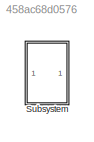
MODEL slx_458ac68d0576
KIND model
CONFIG AbsTol = auto
CONFIG EnableMultiTasking = off
CONFIG FixedStep = auto
CONFIG MaxStep = auto
CONFIG MinStep = auto
CONFIG RelTol = 1e-3
CONFIG SampleTimeConstraint = Unconstrained
CONFIG SolverName = VariableStepAuto
CONFIG StartTime = 0.0
CONFIG StopTime = 10.0
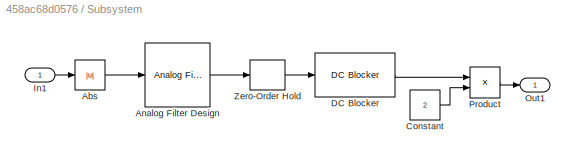
BLOCK [SubSystem] Subsystem
  Ports = [1, 1]
  RequestExecContextInheritance = off
BLOCK [Abs] Subsystem/Abs
  SaturateOnIntegerOverflow = off
BLOCK [Reference] Subsystem/Analog Filter Design  REF=dsparch4/Analog
Filter Design
  Ports = [1, 1]
  SourceBlock = dsparch4/Analog\nFilter Design
  SourceProductBaseCode = DS
  SourceType = Analog Filter Design
BLOCK [Constant] Subsystem/Constant
  Value = 2
BLOCK [Reference] Subsystem/DC Blocker  REF=dspsigops/DC Blocker
  Ports = [1, 1]
  SourceBlock = dspsigops/DC Blocker
  SourceProductBaseCode = DS
  SourceType = DCBlocker
BLOCK [Inport] Subsystem/In1
BLOCK [Outport] Subsystem/Out1
BLOCK [Product] Subsystem/Product
  Ports = [2, 1]
BLOCK [ZeroOrderHold] Subsystem/Zero-Order Hold
  SampleTime = -1
LINE Subsystem/Abs:1 -> Subsystem/Analog Filter Design:1
LINE Subsystem/Analog Filter Design:1 -> Subsystem/Zero-Order Hold:1
LINE Subsystem/Constant:1 -> Subsystem/Product:2
LINE Subsystem/DC Blocker:1 -> Subsystem/Product:1
LINE Subsystem/In1:1 -> Subsystem/Abs:1
LINE Subsystem/Product:1 -> Subsystem/Out1:1
LINE Subsystem/Zero-Order Hold:1 -> Subsystem/DC Blocker:1
